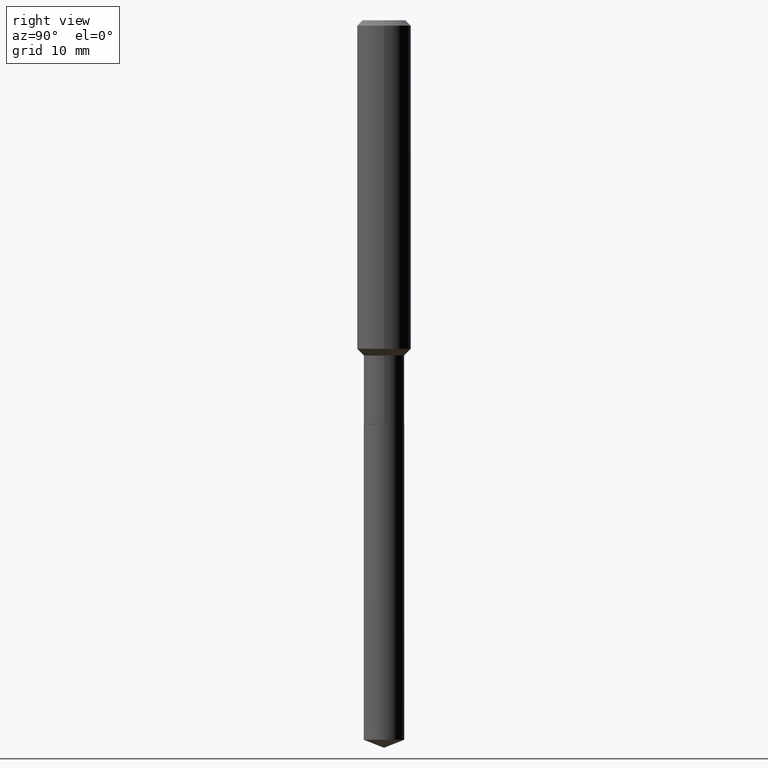
[diagram: clean part render]
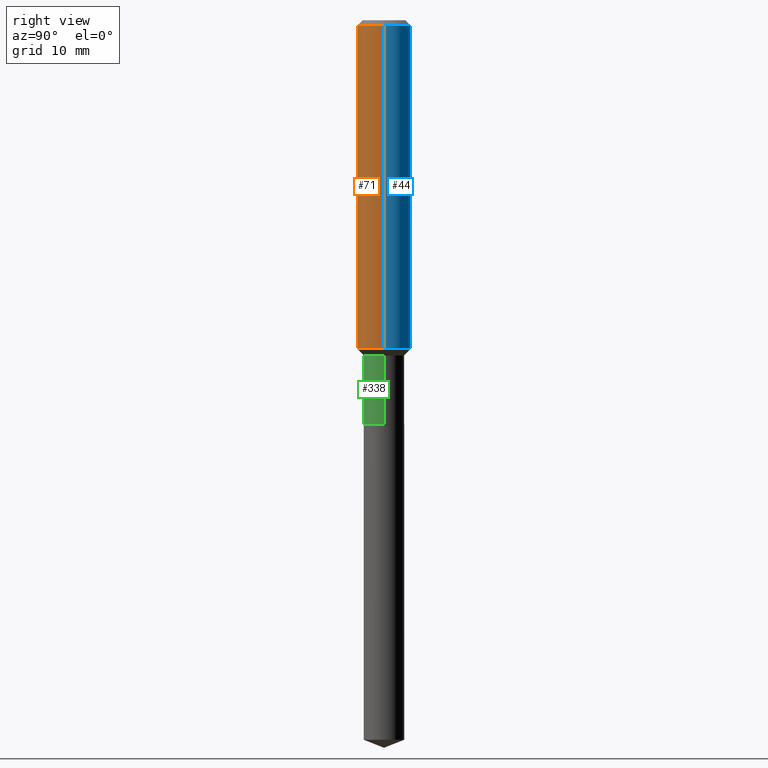
[diagram: same view with three faces highlighted in distinct colors, each labeled with its STEP entity id]
A machine part, right view with three faces highlighted in distinct colors.
Their STEP definitions:

[orange] entity #71 — the highlighted cylindrical surface (edge-blend (fillet) strip) has radius 2.9997 mm, axis along (-0, 0, 1).
#4 = CIRCLE ( 'NONE', #142, 0.1181000000000001632 ) ;
#17 = VECTOR ( 'NONE', #431, 39.37007874015748143 ) ;
#18 = CYLINDRICAL_SURFACE ( 'NONE', #186, 0.1181000000000000799 ) ;
#21 = ORIENTED_EDGE ( 'NONE', *, *, #392, .F. ) ;
#24 = CARTESIAN_POINT ( 'NONE',  ( -0.1181000000000000799, 8.391509709326788873E-16, -5.809262341591047988E-30 ) ) ;
#35 = CARTESIAN_POINT ( 'NONE',  ( 5.776197320209327532E-31, -8.246878922347559293E-17, -0.02362000000000014088 ) ) ;
#60 = DIRECTION ( 'NONE',  ( -2.445468806185136877E-29, 3.491481338843145188E-15, 1.000000000000000000 ) ) ;
#71 = ADVANCED_FACE ( 'NONE', ( #213 ), #18, .T. ) ;
#97 = CARTESIAN_POINT ( 'NONE',  ( 0.000000000000000000, 0.000000000000000000, 0.000000000000000000 ) ) ;
#109 = DIRECTION ( 'NONE',  ( -2.445468806185136597E-29, 3.491481338843145583E-15, 1.000000000000000000 ) ) ;
#142 = AXIS2_PLACEMENT_3D ( 'NONE', #346, #342, #462 ) ;
#150 = AXIS2_PLACEMENT_3D ( 'NONE', #35, #190, #158 ) ;
#158 = DIRECTION ( 'NONE',  ( 1.000000000000000000, -6.982962677686266711E-15, 0.000000000000000000 ) ) ;
#162 = VERTEX_POINT ( 'NONE', #253 ) ;
#186 = AXIS2_PLACEMENT_3D ( 'NONE', #97, #109, #373 ) ;
#190 = DIRECTION ( 'NONE',  ( -2.445468806185136597E-29, 3.491481338843145583E-15, 1.000000000000000000 ) ) ;
#205 = CARTESIAN_POINT ( 'NONE',  ( -0.1180999999999999966, -1.715949987646123475E-15, -0.02362000000000014088 ) ) ;
#213 = FACE_OUTER_BOUND ( 'NONE', #242, .T. ) ;
#242 = EDGE_LOOP ( 'NONE', ( #394, #357, #343, #21 ) ) ;
#248 = LINE ( 'NONE', #24, #17 ) ;
#253 = CARTESIAN_POINT ( 'NONE',  ( 0.1180999999999999966, -9.071566814582237199E-16, -0.02362000000000014088 ) ) ;
#262 = CIRCLE ( 'NONE', #150, 0.1180999999999999966 ) ;
#273 = LINE ( 'NONE', #473, #388 ) ;
#279 = VERTEX_POINT ( 'NONE', #395 ) ;
#311 = VERTEX_POINT ( 'NONE', #205 ) ;
#342 = DIRECTION ( 'NONE',  ( -2.445468806185136597E-29, 3.491481338843145583E-15, 1.000000000000000000 ) ) ;
#343 = ORIENTED_EDGE ( 'NONE', *, *, #372, .T. ) ;
#346 = CARTESIAN_POINT ( 'NONE',  ( 3.521475080906597305E-29, -5.027733127934130649E-15, -1.440000000000000169 ) ) ;
#357 = ORIENTED_EDGE ( 'NONE', *, *, #438, .T. ) ;
#365 = EDGE_CURVE ( 'NONE', #475, #311, #248, .T. ) ;
#372 = EDGE_CURVE ( 'NONE', #279, #162, #273, .T. ) ;
#373 = DIRECTION ( 'NONE',  ( 1.000000000000000000, -6.982962677686266711E-15, 4.876176775795936353E-29 ) ) ;
#388 = VECTOR ( 'NONE', #60, 39.37007874015748143 ) ;
#392 = EDGE_CURVE ( 'NONE', #311, #162, #262, .T. ) ;
#394 = ORIENTED_EDGE ( 'NONE', *, *, #365, .F. ) ;
#395 = CARTESIAN_POINT ( 'NONE',  ( 0.1181000000000001632, -5.852421020168879700E-15, -1.440000000000000169 ) ) ;
#431 = DIRECTION ( 'NONE',  ( -2.445468806185136877E-29, 3.491481338843145188E-15, 1.000000000000000000 ) ) ;
#438 = EDGE_CURVE ( 'NONE', #475, #279, #4, .T. ) ;
#462 = DIRECTION ( 'NONE',  ( 1.000000000000000000, -6.982962677686263555E-15, 0.000000000000000000 ) ) ;
#473 = CARTESIAN_POINT ( 'NONE',  ( 0.1181000000000000799, -8.246878922347486570E-16, 5.758764772215004644E-30 ) ) ;
#474 = CARTESIAN_POINT ( 'NONE',  ( -0.1181000000000001632, -4.188582157001450874E-15, -1.440000000000000169 ) ) ;
#475 = VERTEX_POINT ( 'NONE', #474 ) ;

[blue] entity #44 — the highlighted cylindrical surface (edge-blend (fillet) strip) has radius 2.9997 mm, axis along (-0, 0, 1).
#8 = AXIS2_PLACEMENT_3D ( 'NONE', #165, #414, #82 ) ;
#17 = VECTOR ( 'NONE', #431, 39.37007874015748143 ) ;
#24 = CARTESIAN_POINT ( 'NONE',  ( -0.1181000000000000799, 8.391509709326788873E-16, -5.809262341591047988E-30 ) ) ;
#36 = CARTESIAN_POINT ( 'NONE',  ( 0.000000000000000000, 0.000000000000000000, 0.000000000000000000 ) ) ;
#44 = ADVANCED_FACE ( 'NONE', ( #410 ), #375, .T. ) ;
#60 = DIRECTION ( 'NONE',  ( -2.445468806185136877E-29, 3.491481338843145188E-15, 1.000000000000000000 ) ) ;
#82 = DIRECTION ( 'NONE',  ( 1.000000000000000000, -6.982962677686266711E-15, 0.000000000000000000 ) ) ;
#89 = AXIS2_PLACEMENT_3D ( 'NONE', #36, #289, #277 ) ;
#91 = EDGE_CURVE ( 'NONE', #162, #311, #469, .T. ) ;
#117 = ORIENTED_EDGE ( 'NONE', *, *, #286, .T. ) ;
#162 = VERTEX_POINT ( 'NONE', #253 ) ;
#165 = CARTESIAN_POINT ( 'NONE',  ( 5.776197320209327532E-31, -8.246878922347559293E-17, -0.02362000000000014088 ) ) ;
#197 = AXIS2_PLACEMENT_3D ( 'NONE', #468, #271, #208 ) ;
#205 = CARTESIAN_POINT ( 'NONE',  ( -0.1180999999999999966, -1.715949987646123475E-15, -0.02362000000000014088 ) ) ;
#208 = DIRECTION ( 'NONE',  ( 1.000000000000000000, -6.982962677686263555E-15, 0.000000000000000000 ) ) ;
#248 = LINE ( 'NONE', #24, #17 ) ;
#253 = CARTESIAN_POINT ( 'NONE',  ( 0.1180999999999999966, -9.071566814582237199E-16, -0.02362000000000014088 ) ) ;
#263 = ORIENTED_EDGE ( 'NONE', *, *, #372, .F. ) ;
#271 = DIRECTION ( 'NONE',  ( -2.445468806185136597E-29, 3.491481338843145583E-15, 1.000000000000000000 ) ) ;
#273 = LINE ( 'NONE', #473, #388 ) ;
#277 = DIRECTION ( 'NONE',  ( 1.000000000000000000, -6.982962677686266711E-15, 4.876176775795936353E-29 ) ) ;
#279 = VERTEX_POINT ( 'NONE', #395 ) ;
#286 = EDGE_CURVE ( 'NONE', #279, #475, #444, .T. ) ;
#289 = DIRECTION ( 'NONE',  ( -2.445468806185136597E-29, 3.491481338843145583E-15, 1.000000000000000000 ) ) ;
#311 = VERTEX_POINT ( 'NONE', #205 ) ;
#316 = ORIENTED_EDGE ( 'NONE', *, *, #365, .T. ) ;
#363 = ORIENTED_EDGE ( 'NONE', *, *, #91, .F. ) ;
#365 = EDGE_CURVE ( 'NONE', #475, #311, #248, .T. ) ;
#372 = EDGE_CURVE ( 'NONE', #279, #162, #273, .T. ) ;
#375 = CYLINDRICAL_SURFACE ( 'NONE', #89, 0.1181000000000000799 ) ;
#388 = VECTOR ( 'NONE', #60, 39.37007874015748143 ) ;
#395 = CARTESIAN_POINT ( 'NONE',  ( 0.1181000000000001632, -5.852421020168879700E-15, -1.440000000000000169 ) ) ;
#410 = FACE_OUTER_BOUND ( 'NONE', #422, .T. ) ;
#414 = DIRECTION ( 'NONE',  ( -2.445468806185136597E-29, 3.491481338843145583E-15, 1.000000000000000000 ) ) ;
#422 = EDGE_LOOP ( 'NONE', ( #117, #316, #363, #263 ) ) ;
#431 = DIRECTION ( 'NONE',  ( -2.445468806185136877E-29, 3.491481338843145188E-15, 1.000000000000000000 ) ) ;
#444 = CIRCLE ( 'NONE', #197, 0.1181000000000001632 ) ;
#468 = CARTESIAN_POINT ( 'NONE',  ( 3.521475080906597305E-29, -5.027733127934130649E-15, -1.440000000000000169 ) ) ;
#469 = CIRCLE ( 'NONE', #8, 0.1180999999999999966 ) ;
#473 = CARTESIAN_POINT ( 'NONE',  ( 0.1181000000000000799, -8.246878922347486570E-16, 5.758764772215004644E-30 ) ) ;
#474 = CARTESIAN_POINT ( 'NONE',  ( -0.1181000000000001632, -4.188582157001450874E-15, -1.440000000000000169 ) ) ;
#475 = VERTEX_POINT ( 'NONE', #474 ) ;

[green] entity #338 — the highlighted cylindrical surface (edge-blend (fillet) strip) has radius 2.2504 mm, axis along (-0, 0, 1).
#3 = AXIS2_PLACEMENT_3D ( 'NONE', #20, #477, #321 ) ;
#11 = VERTEX_POINT ( 'NONE', #139 ) ;
#20 = CARTESIAN_POINT ( 'NONE',  ( 3.593616410689059139E-29, -5.130731827430003304E-15, -1.469500000000000250 ) ) ;
#46 = CYLINDRICAL_SURFACE ( 'NONE', #123, 0.08859999999999998432 ) ;
#79 = ORIENTED_EDGE ( 'NONE', *, *, #466, .T. ) ;
#87 = ORIENTED_EDGE ( 'NONE', *, *, #203, .T. ) ;
#94 = CARTESIAN_POINT ( 'NONE',  ( 0.08859999999999998432, -6.186904932430030515E-16, 4.320292623355198064E-30 ) ) ;
#123 = AXIS2_PLACEMENT_3D ( 'NONE', #460, #230, #400 ) ;
#135 = CARTESIAN_POINT ( 'NONE',  ( 0.08859999999999995657, -5.749422320673005468E-15, -1.469500000000000250 ) ) ;
#139 = CARTESIAN_POINT ( 'NONE',  ( -0.08859999999999999820, -5.027880923511043773E-15, -1.771200000000000552 ) ) ;
#148 = EDGE_LOOP ( 'NONE', ( #183, #87, #79, #224 ) ) ;
#161 = FACE_OUTER_BOUND ( 'NONE', #148, .T. ) ;
#168 = CARTESIAN_POINT ( 'NONE',  ( 0.08859999999999999820, -6.802802240601984897E-15, -1.771200000000000552 ) ) ;
#169 = VECTOR ( 'NONE', #185, 39.37007874015748143 ) ;
#183 = ORIENTED_EDGE ( 'NONE', *, *, #415, .F. ) ;
#185 = DIRECTION ( 'NONE',  ( -2.445468806185136877E-29, 3.491481338843145188E-15, 1.000000000000000000 ) ) ;
#203 = EDGE_CURVE ( 'NONE', #11, #439, #227, .T. ) ;
#224 = ORIENTED_EDGE ( 'NONE', *, *, #318, .F. ) ;
#227 = CIRCLE ( 'NONE', #381, 0.08859999999999999820 ) ;
#230 = DIRECTION ( 'NONE',  ( -2.445468806185136597E-29, 3.491481338843145583E-15, 1.000000000000000000 ) ) ;
#251 = VECTOR ( 'NONE', #315, 39.37007874015748143 ) ;
#266 = VERTEX_POINT ( 'NONE', #317 ) ;
#274 = LINE ( 'NONE', #94, #251 ) ;
#309 = CIRCLE ( 'NONE', #3, 0.08859999999999995657 ) ;
#312 = DIRECTION ( 'NONE',  ( -2.445468806185136597E-29, 3.491481338843145583E-15, 1.000000000000000000 ) ) ;
#315 = DIRECTION ( 'NONE',  ( -2.445468806185136877E-29, 3.491481338843145188E-15, 1.000000000000000000 ) ) ;
#317 = CARTESIAN_POINT ( 'NONE',  ( -0.08859999999999995657, -5.027880923511043773E-15, -1.469500000000000250 ) ) ;
#318 = EDGE_CURVE ( 'NONE', #266, #435, #309, .T. ) ;
#321 = DIRECTION ( 'NONE',  ( 1.000000000000000000, -6.982962677686261189E-15, 0.000000000000000000 ) ) ;
#335 = LINE ( 'NONE', #370, #169 ) ;
#338 = ADVANCED_FACE ( 'NONE', ( #161 ), #46, .T. ) ;
#370 = CARTESIAN_POINT ( 'NONE',  ( -0.08859999999999998432, 6.295408638834486533E-16, -4.358176489965845566E-30 ) ) ;
#381 = AXIS2_PLACEMENT_3D ( 'NONE', #479, #312, #402 ) ;
#400 = DIRECTION ( 'NONE',  ( 1.000000000000000000, -6.982962677686265922E-15, 4.876176775795935232E-29 ) ) ;
#402 = DIRECTION ( 'NONE',  ( 1.000000000000000000, -6.982962677686269077E-15, 0.000000000000000000 ) ) ;
#415 = EDGE_CURVE ( 'NONE', #11, #266, #335, .T. ) ;
#435 = VERTEX_POINT ( 'NONE', #135 ) ;
#439 = VERTEX_POINT ( 'NONE', #168 ) ;
#460 = CARTESIAN_POINT ( 'NONE',  ( 0.000000000000000000, 0.000000000000000000, 0.000000000000000000 ) ) ;
#466 = EDGE_CURVE ( 'NONE', #439, #435, #274, .T. ) ;
#477 = DIRECTION ( 'NONE',  ( -2.445468806185136597E-29, 3.491481338843145583E-15, 1.000000000000000000 ) ) ;
#479 = CARTESIAN_POINT ( 'NONE',  ( 4.331414349515115307E-29, -6.184111747358981944E-15, -1.771200000000000552 ) ) ;